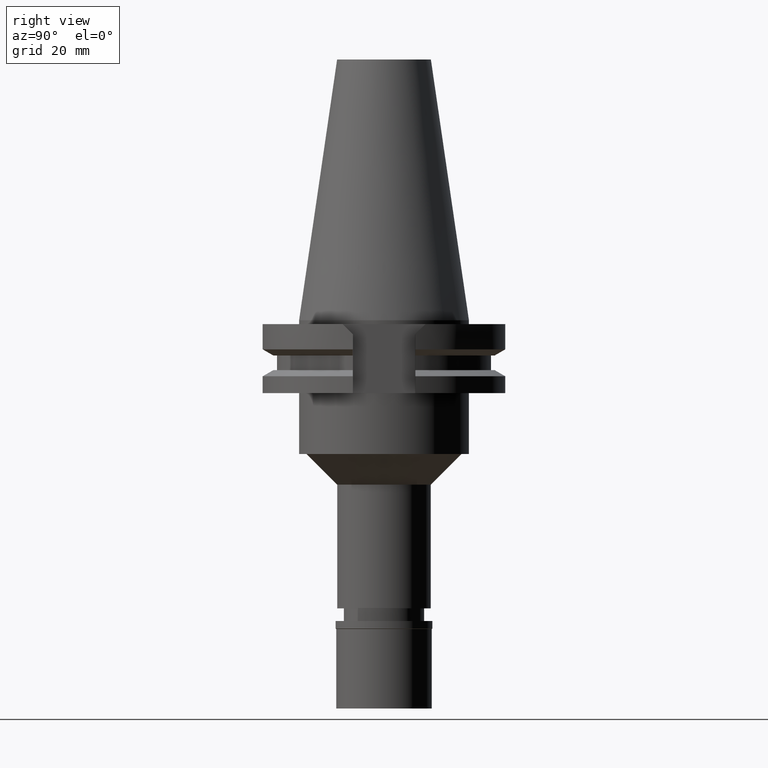
[diagram: clean part render]
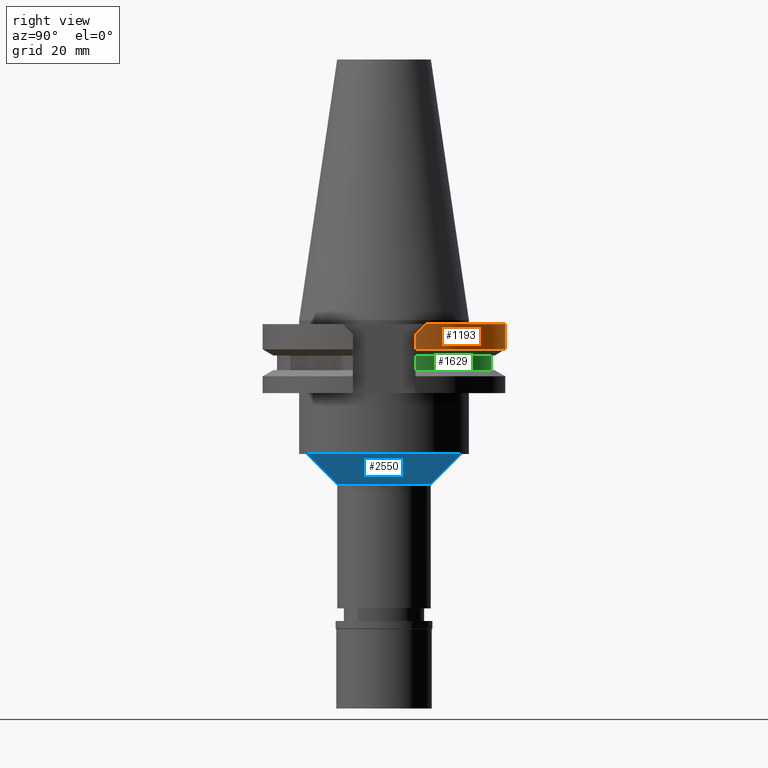
[diagram: same view with three faces highlighted in distinct colors, each labeled with its STEP entity id]
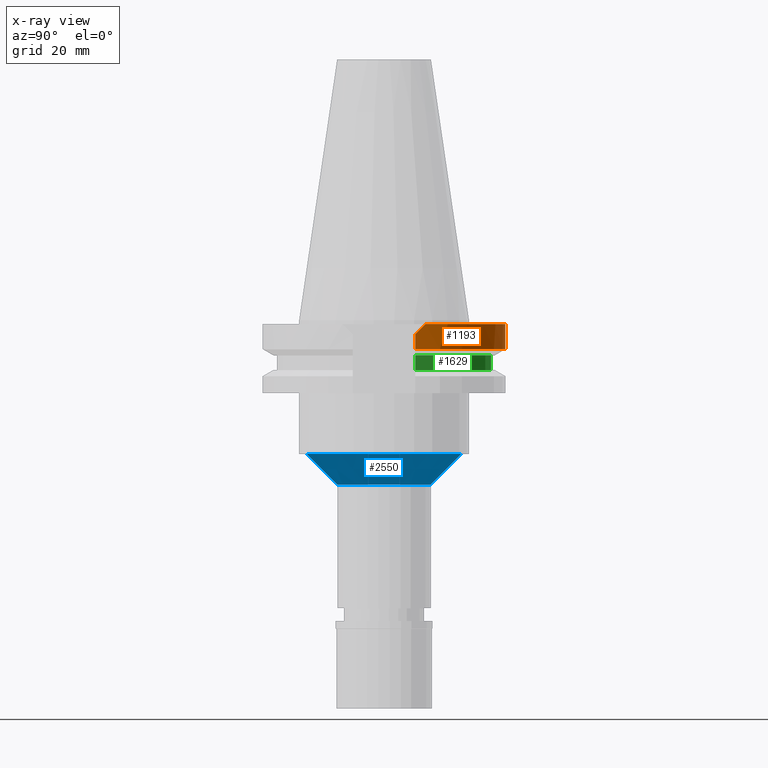
[diagram: x-ray of the same camera — body ghosted, the three highlighted faces saturated]
A machine part, right view with three faces highlighted in distinct colors.
The next image is the same camera in x-ray (body ghosted, the three faces saturated) — at least one of them is partly hidden behind the body in this view.
Their STEP definitions:

[orange] entity #1193 — the highlighted cylindrical surface (partial cylindrical patch) has radius 31.75 mm, axis along (0, 0, -1).
#144 = AXIS2_PLACEMENT_3D ( 'NONE', #508, #2548, #939 ) ;
#182 = VERTEX_POINT ( 'NONE', #1605 ) ;
#186 = CIRCLE ( 'NONE', #712, 31.74999999999998579 ) ;
#187 = VERTEX_POINT ( 'NONE', #2575 ) ;
#204 = ORIENTED_EDGE ( 'NONE', *, *, #1150, .T. ) ;
#230 = ORIENTED_EDGE ( 'NONE', *, *, #451, .F. ) ;
#240 = CARTESIAN_POINT ( 'NONE',  ( -30.67550162588999640, 8.189999999999999503, -3.700000000000000178 ) ) ;
#299 = CYLINDRICAL_SURFACE ( 'NONE', #1120, 31.75000000000000000 ) ;
#451 = EDGE_CURVE ( 'NONE', #187, #2294, #1761, .T. ) ;
#508 = CARTESIAN_POINT ( 'NONE',  ( 0.0000000000000000000, 0.0000000000000000000, -0.9999999999999000799 ) ) ;
#567 = CARTESIAN_POINT ( 'NONE',  ( 30.67550165945999652, 8.189999874270000646, -7.601334354499000412 ) ) ;
#606 = VERTEX_POINT ( 'NONE', #1792 ) ;
#658 = CARTESIAN_POINT ( 'NONE',  ( 30.43183015827552040, 9.102667216255303728, -2.787332783744695064 ) ) ;
#663 = CARTESIAN_POINT ( 'NONE',  ( -29.82399034335000110, 10.89000000000000057, -0.9999999999999000799 ) ) ;
#712 = AXIS2_PLACEMENT_3D ( 'NONE', #1179, #1411, #1478 ) ;
#788 = VERTEX_POINT ( 'NONE', #567 ) ;
#920 = DIRECTION ( 'NONE',  ( 4.149819380299944722E-08, 1.554311872311979613E-07, -0.9999999999999870104 ) ) ;
#939 = DIRECTION ( 'NONE',  ( 0.0000000000000000000, 1.000000000000000000, 0.0000000000000000000 ) ) ;
#1042 = FACE_OUTER_BOUND ( 'NONE', #2462, .T. ) ;
#1043 = ORIENTED_EDGE ( 'NONE', *, *, #2531, .F. ) ;
#1097 = LINE ( 'NONE', #2923, #2696 ) ;
#1120 = AXIS2_PLACEMENT_3D ( 'NONE', #1327, #2820, #2317 ) ;
#1150 = EDGE_CURVE ( 'NONE', #187, #2433, #2246, .T. ) ;
#1152 = LINE ( 'NONE', #1727, #2996 ) ;
#1179 = CARTESIAN_POINT ( 'NONE',  ( 0.0000000000000000000, 0.0000000000000000000, -7.601333230925999551 ) ) ;
#1193 = ADVANCED_FACE ( 'NONE', ( #1042 ), #299, .T. ) ;
#1327 = CARTESIAN_POINT ( 'NONE',  ( 0.0000000000000000000, 0.0000000000000000000, 76.29250000000000398 ) ) ;
#1381 = ORIENTED_EDGE ( 'NONE', *, *, #3186, .F. ) ;
#1398 = DIRECTION ( 'NONE',  ( -8.604469633308997870E-09, 3.222744808477997622E-08, 0.9999999999999994449 ) ) ;
#1411 = DIRECTION ( 'NONE',  ( 0.0000000000000000000, 0.0000000000000000000, 1.000000000000000000 ) ) ;
#1478 = DIRECTION ( 'NONE',  ( 0.9661575315241073270, 0.2579527559055020958, 0.0000000000000000000 ) ) ;
#1585 = EDGE_CURVE ( 'NONE', #2294, #182, #1152, .T. ) ;
#1605 = CARTESIAN_POINT ( 'NONE',  ( -30.67550146398999900, 8.190000606388000648, -7.601327811888999975 ) ) ;
#1700 = CARTESIAN_POINT ( 'NONE',  ( -30.14799306409551249, 10.00266721625513888, -1.887332783744861242 ) ) ;
#1711 = CARTESIAN_POINT ( 'NONE',  ( 30.14799306409551960, 10.00266721625513888, -1.887332783744861242 ) ) ;
#1727 = CARTESIAN_POINT ( 'NONE',  ( -30.67550162588999640, 8.189999999999999503, -3.700000000000000178 ) ) ;
#1749 = ORIENTED_EDGE ( 'NONE', *, *, #2671, .T. ) ;
#1761 = B_SPLINE_CURVE_WITH_KNOTS ( 'NONE', 3,
 ( #663, #1700, #2721, #2924 ),
 .UNSPECIFIED., .F., .F.,
 ( 4, 4 ),
 ( 0.0000000000000000000, 1.000000000000000000 ),
 .UNSPECIFIED. ) ;
#1792 = CARTESIAN_POINT ( 'NONE',  ( 30.67550162588999640, 8.189999999999999503, -3.700000000000000178 ) ) ;
#1918 = CARTESIAN_POINT ( 'NONE',  ( 29.82399034335000110, 10.89000000000000057, -1.000000000001000089 ) ) ;
#1929 = CARTESIAN_POINT ( 'NONE',  ( 30.67550162588999640, 8.189999999999999503, -3.700000000000000178 ) ) ;
#2246 = CIRCLE ( 'NONE', #144, 31.75000000000000000 ) ;
#2294 = VERTEX_POINT ( 'NONE', #240 ) ;
#2317 = DIRECTION ( 'NONE',  ( 0.0000000000000000000, -1.000000000000000000, 0.0000000000000000000 ) ) ;
#2433 = VERTEX_POINT ( 'NONE', #1918 ) ;
#2462 = EDGE_LOOP ( 'NONE', ( #1749, #2814, #230, #204, #1381, #1043 ) ) ;
#2531 = EDGE_CURVE ( 'NONE', #788, #606, #1097, .T. ) ;
#2548 = DIRECTION ( 'NONE',  ( 0.0000000000000000000, 0.0000000000000000000, -1.000000000000000000 ) ) ;
#2575 = CARTESIAN_POINT ( 'NONE',  ( -29.82399034335000110, 10.89000000000000057, -0.9999999999999000799 ) ) ;
#2671 = EDGE_CURVE ( 'NONE', #788, #182, #186, .T. ) ;
#2691 = CARTESIAN_POINT ( 'NONE',  ( 29.82399034335000110, 10.89000000000000057, -1.000000000001000089 ) ) ;
#2696 = VECTOR ( 'NONE', #1398, 1000.000000000000114 ) ;
#2721 = CARTESIAN_POINT ( 'NONE',  ( -30.43183015827551330, 9.102667216255303728, -2.787332783744695064 ) ) ;
#2814 = ORIENTED_EDGE ( 'NONE', *, *, #1585, .F. ) ;
#2820 = DIRECTION ( 'NONE',  ( 0.0000000000000000000, 0.0000000000000000000, -1.000000000000000000 ) ) ;
#2835 = B_SPLINE_CURVE_WITH_KNOTS ( 'NONE', 3,
 ( #1929, #658, #1711, #2691 ),
 .UNSPECIFIED., .F., .F.,
 ( 4, 4 ),
 ( 0.0000000000000000000, 1.000000000000000000 ),
 .UNSPECIFIED. ) ;
#2923 = CARTESIAN_POINT ( 'NONE',  ( 30.67550165945999652, 8.189999874270000646, -7.601334354499000412 ) ) ;
#2924 = CARTESIAN_POINT ( 'NONE',  ( -30.67550162588999640, 8.189999999999999503, -3.700000000000000178 ) ) ;
#2996 = VECTOR ( 'NONE', #920, 1000.000000000000227 ) ;
#3186 = EDGE_CURVE ( 'NONE', #606, #2433, #2835, .T. ) ;

[blue] entity #2550 — the highlighted conical surface has half-angle 45 deg.
#129 = DIRECTION ( 'NONE',  ( 0.0000000000000000000, 1.000000000000000000, 0.0000000000000000000 ) ) ;
#227 = VERTEX_POINT ( 'NONE', #290 ) ;
#244 = VERTEX_POINT ( 'NONE', #312 ) ;
#290 = CARTESIAN_POINT ( 'NONE',  ( 0.0000000000000000000, -20.25000000000000000, -35.00000000000000000 ) ) ;
#305 = AXIS2_PLACEMENT_3D ( 'NONE', #420, #3246, #129 ) ;
#312 = CARTESIAN_POINT ( 'NONE',  ( 0.0000000000000000000, -12.25000000000000000, -43.00000000000000000 ) ) ;
#376 = EDGE_CURVE ( 'NONE', #2444, #244, #3254, .T. ) ;
#420 = CARTESIAN_POINT ( 'NONE',  ( 0.0000000000000000000, 0.0000000000000000000, -43.00000000000000000 ) ) ;
#838 = FACE_OUTER_BOUND ( 'NONE', #3045, .T. ) ;
#878 = CONICAL_SURFACE ( 'NONE', #1899, 16.25000000000000000, 0.7853981633972997312 ) ;
#1071 = LINE ( 'NONE', #2283, #1286 ) ;
#1114 = DIRECTION ( 'NONE',  ( 0.0000000000000000000, 0.0000000000000000000, 1.000000000000000000 ) ) ;
#1135 = CARTESIAN_POINT ( 'NONE',  ( 0.0000000000000000000, 20.25000000000000000, -35.00000000000000000 ) ) ;
#1203 = CARTESIAN_POINT ( 'NONE',  ( 0.0000000000000000000, 0.0000000000000000000, -35.00000000000000000 ) ) ;
#1205 = CIRCLE ( 'NONE', #3083, 20.25000000000000000 ) ;
#1286 = VECTOR ( 'NONE', #3274, 1000.000000000000114 ) ;
#1371 = ORIENTED_EDGE ( 'NONE', *, *, #1798, .F. ) ;
#1762 = EDGE_CURVE ( 'NONE', #227, #244, #2512, .T. ) ;
#1783 = CARTESIAN_POINT ( 'NONE',  ( 0.0000000000000000000, -20.25000000000000000, -35.00000000000000000 ) ) ;
#1798 = EDGE_CURVE ( 'NONE', #2042, #2444, #1071, .T. ) ;
#1867 = DIRECTION ( 'NONE',  ( 0.0000000000000000000, 1.000000000000000000, 0.0000000000000000000 ) ) ;
#1899 = AXIS2_PLACEMENT_3D ( 'NONE', #2107, #1114, #1867 ) ;
#2042 = VERTEX_POINT ( 'NONE', #1135 ) ;
#2096 = DIRECTION ( 'NONE',  ( 0.0000000000000000000, 0.7071067811865474617, -0.7071067811865474617 ) ) ;
#2107 = CARTESIAN_POINT ( 'NONE',  ( 0.0000000000000000000, 0.0000000000000000000, -39.00000000000000000 ) ) ;
#2230 = DIRECTION ( 'NONE',  ( 0.0000000000000000000, 1.000000000000000000, 0.0000000000000000000 ) ) ;
#2262 = ORIENTED_EDGE ( 'NONE', *, *, #3230, .T. ) ;
#2283 = CARTESIAN_POINT ( 'NONE',  ( 0.0000000000000000000, 20.25000000000000000, -35.00000000000000000 ) ) ;
#2303 = VECTOR ( 'NONE', #2096, 1000.000000000000114 ) ;
#2306 = ORIENTED_EDGE ( 'NONE', *, *, #1762, .T. ) ;
#2444 = VERTEX_POINT ( 'NONE', #2621 ) ;
#2512 = LINE ( 'NONE', #1783, #2303 ) ;
#2550 = ADVANCED_FACE ( 'NONE', ( #838 ), #878, .T. ) ;
#2621 = CARTESIAN_POINT ( 'NONE',  ( 0.0000000000000000000, 12.25000000000000000, -43.00000000000000000 ) ) ;
#2731 = DIRECTION ( 'NONE',  ( 0.0000000000000000000, 0.0000000000000000000, -1.000000000000000000 ) ) ;
#3010 = ORIENTED_EDGE ( 'NONE', *, *, #376, .F. ) ;
#3045 = EDGE_LOOP ( 'NONE', ( #2262, #2306, #3010, #1371 ) ) ;
#3083 = AXIS2_PLACEMENT_3D ( 'NONE', #1203, #2731, #2230 ) ;
#3230 = EDGE_CURVE ( 'NONE', #2042, #227, #1205, .T. ) ;
#3246 = DIRECTION ( 'NONE',  ( 0.0000000000000000000, 0.0000000000000000000, -1.000000000000000000 ) ) ;
#3254 = CIRCLE ( 'NONE', #305, 12.25000000000000000 ) ;
#3274 = DIRECTION ( 'NONE',  ( 0.0000000000000000000, -0.7071067811865474617, -0.7071067811865474617 ) ) ;

[green] entity #1629 — the highlighted cylindrical surface (partial cylindrical patch) has radius 28.18 mm, axis along (0, 0, -1).
#3 = DIRECTION ( 'NONE',  ( 0.0000000000000000000, 0.0000000000000000000, 1.000000000000000000 ) ) ;
#41 = EDGE_CURVE ( 'NONE', #931, #744, #3206, .T. ) ;
#79 = CARTESIAN_POINT ( 'NONE',  ( -26.96361066326000255, 8.189999999999999503, -9.207499999999999574 ) ) ;
#120 = AXIS2_PLACEMENT_3D ( 'NONE', #1981, #3282, #1192 ) ;
#241 = CIRCLE ( 'NONE', #120, 28.17999999999999616 ) ;
#350 = LINE ( 'NONE', #1597, #477 ) ;
#416 = CARTESIAN_POINT ( 'NONE',  ( 26.96361066326000255, 8.189999999999999503, -9.207499999999999574 ) ) ;
#477 = VECTOR ( 'NONE', #1126, 1000.000000000000000 ) ;
#543 = CARTESIAN_POINT ( 'NONE',  ( -26.96361066326000255, 8.189999999999999503, -13.04749999999999943 ) ) ;
#645 = FACE_OUTER_BOUND ( 'NONE', #3301, .T. ) ;
#673 = EDGE_CURVE ( 'NONE', #1239, #744, #1820, .T. ) ;
#744 = VERTEX_POINT ( 'NONE', #543 ) ;
#831 = AXIS2_PLACEMENT_3D ( 'NONE', #2045, #3, #3052 ) ;
#895 = VECTOR ( 'NONE', #2595, 1000.000000000000000 ) ;
#931 = VERTEX_POINT ( 'NONE', #2716 ) ;
#940 = VERTEX_POINT ( 'NONE', #416 ) ;
#1022 = AXIS2_PLACEMENT_3D ( 'NONE', #2676, #2965, #1690 ) ;
#1126 = DIRECTION ( 'NONE',  ( 0.0000000000000000000, 0.0000000000000000000, 1.000000000000000000 ) ) ;
#1174 = ORIENTED_EDGE ( 'NONE', *, *, #2607, .T. ) ;
#1192 = DIRECTION ( 'NONE',  ( -0.9568350128907829877, 0.2906316536550950236, 0.0000000000000000000 ) ) ;
#1239 = VERTEX_POINT ( 'NONE', #3121 ) ;
#1493 = EDGE_CURVE ( 'NONE', #931, #940, #350, .T. ) ;
#1597 = CARTESIAN_POINT ( 'NONE',  ( 26.96361066326000255, 8.189999999999999503, -13.04749999999999943 ) ) ;
#1629 = ADVANCED_FACE ( 'NONE', ( #645 ), #1940, .T. ) ;
#1690 = DIRECTION ( 'NONE',  ( 0.0000000000000000000, -1.000000000000000000, 0.0000000000000000000 ) ) ;
#1756 = ORIENTED_EDGE ( 'NONE', *, *, #41, .T. ) ;
#1820 = LINE ( 'NONE', #79, #895 ) ;
#1938 = ORIENTED_EDGE ( 'NONE', *, *, #673, .F. ) ;
#1940 = CYLINDRICAL_SURFACE ( 'NONE', #1022, 28.17999999999999972 ) ;
#1981 = CARTESIAN_POINT ( 'NONE',  ( 0.0000000000000000000, 0.0000000000000000000, -9.207499999999999574 ) ) ;
#2045 = CARTESIAN_POINT ( 'NONE',  ( 0.0000000000000000000, 0.0000000000000000000, -13.04749999999999943 ) ) ;
#2133 = ORIENTED_EDGE ( 'NONE', *, *, #1493, .F. ) ;
#2595 = DIRECTION ( 'NONE',  ( 0.0000000000000000000, 0.0000000000000000000, -1.000000000000000000 ) ) ;
#2607 = EDGE_CURVE ( 'NONE', #1239, #940, #241, .T. ) ;
#2676 = CARTESIAN_POINT ( 'NONE',  ( 0.0000000000000000000, 0.0000000000000000000, 76.29250000000000398 ) ) ;
#2716 = CARTESIAN_POINT ( 'NONE',  ( 26.96361066326000255, 8.189999999999999503, -13.04749999999999943 ) ) ;
#2965 = DIRECTION ( 'NONE',  ( 0.0000000000000000000, 0.0000000000000000000, -1.000000000000000000 ) ) ;
#3052 = DIRECTION ( 'NONE',  ( 0.0000000000000000000, 1.000000000000000000, 0.0000000000000000000 ) ) ;
#3121 = CARTESIAN_POINT ( 'NONE',  ( -26.96361066326000255, 8.189999999999999503, -9.207499999999999574 ) ) ;
#3206 = CIRCLE ( 'NONE', #831, 28.17999999999999972 ) ;
#3282 = DIRECTION ( 'NONE',  ( 0.0000000000000000000, 0.0000000000000000000, -1.000000000000000000 ) ) ;
#3301 = EDGE_LOOP ( 'NONE', ( #2133, #1756, #1938, #1174 ) ) ;